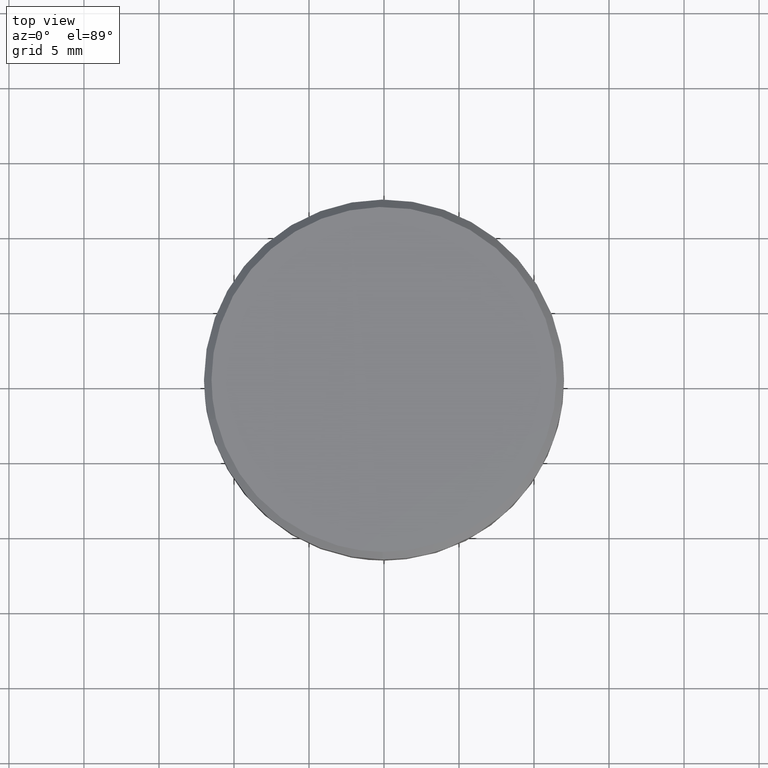
[diagram: clean part render]
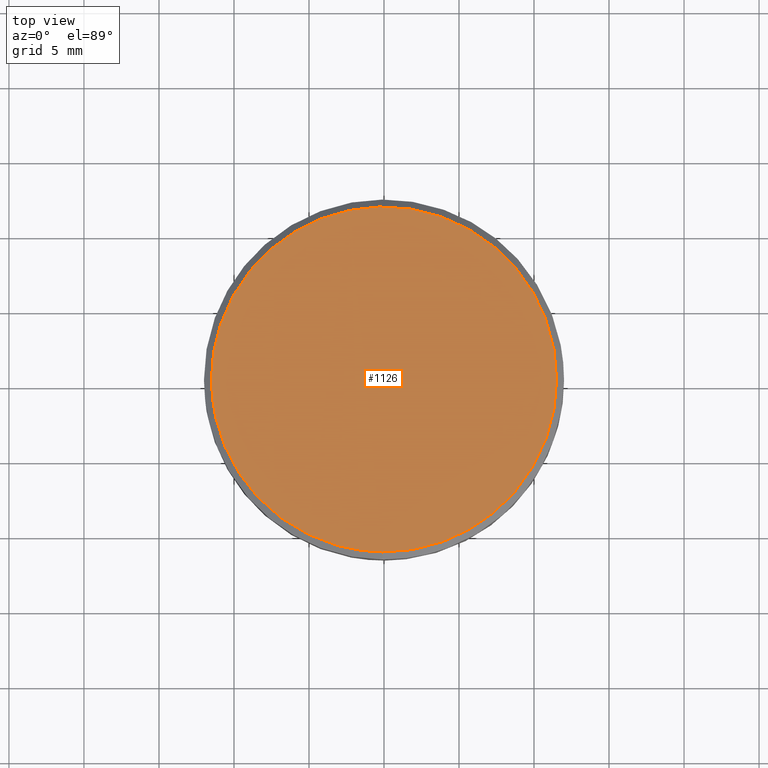
[diagram: same view with one face highlighted and labeled with its STEP entity id]
A machine part, top view. The second image highlights one B-rep face of the part: STEP entity #1126.
In plain terms, the highlighted face is a freeform B-spline surface patch.
Its self-contained STEP definition (entity closure, byte-faithful):
#87=CARTESIAN_POINT('',(-11.203508761551880,-2.594492518754810,14.999999999998041));
#88=VERTEX_POINT('',#87);
#94=CARTESIAN_POINT('',(-11.500000000000000,0.0,15.0));
#95=VERTEX_POINT('',#94);
#96=CARTESIAN_POINT('',(-11.500000000000000,0.0,15.0));
#97=CARTESIAN_POINT('',(-11.500000000000002,-1.314187347834063,15.0));
#98=CARTESIAN_POINT('',(-11.203508761551882,-2.594492518754810,14.999999999998044));
#106=(BOUNDED_CURVE()B_SPLINE_CURVE(2,(#96,#97,#98),.UNSPECIFIED.,.F.,.U.)B_SPLINE_CURVE_WITH_KNOTS((3,3),(0.500000000000000,0.538577028215869),.UNSPECIFIED.)CURVE()GEOMETRIC_REPRESENTATION_ITEM()RATIONAL_B_SPLINE_CURVE((1.0,0.954804200134387,0.923556557442010))REPRESENTATION_ITEM(''));
#107=EDGE_CURVE('',#95,#88,#106,.T.);
#109=CARTESIAN_POINT('',(11.500000000000000,0.0,15.0));
#110=VERTEX_POINT('',#109);
#111=CARTESIAN_POINT('',(11.500000000000000,0.0,15.0));
#112=CARTESIAN_POINT('',(11.500000000000000,11.500000000000000,14.999999999999995));
#113=CARTESIAN_POINT('',(0.0,11.500000000000000,15.0));
#114=CARTESIAN_POINT('',(-11.500000000000000,11.500000000000000,14.999999999999995));
#115=CARTESIAN_POINT('',(-11.500000000000000,0.0,15.0));
#123=(BOUNDED_CURVE()B_SPLINE_CURVE(2,(#111,#112,#113,#114,#115),.UNSPECIFIED.,.F.,.U.)B_SPLINE_CURVE_WITH_KNOTS((3,2,3),(0.0,0.250000000000000,0.500000000000000),.UNSPECIFIED.)CURVE()GEOMETRIC_REPRESENTATION_ITEM()RATIONAL_B_SPLINE_CURVE((1.0,0.707106781186548,1.0,0.707106781186548,1.0))REPRESENTATION_ITEM(''));
#124=EDGE_CURVE('',#110,#95,#123,.T.);
#126=CARTESIAN_POINT('',(-0.100355158267969,-11.499562115242620,14.999999999995000));
#127=VERTEX_POINT('',#126);
#128=CARTESIAN_POINT('',(-0.100355158267969,-11.499562115242618,14.999999999995005));
#129=CARTESIAN_POINT('',(-0.050178534474695,-11.499999999999998,15.000000000000007));
#130=CARTESIAN_POINT('',(0.0,-11.500000000000000,15.0));
#131=CARTESIAN_POINT('',(11.500000000000000,-11.500000000000000,14.999999999999995));
#132=CARTESIAN_POINT('',(11.500000000000000,0.0,15.0));
#140=(BOUNDED_CURVE()B_SPLINE_CURVE(2,(#128,#129,#130,#131,#132),.UNSPECIFIED.,.F.,.U.)B_SPLINE_CURVE_WITH_KNOTS((3,2,3),(0.748460105663891,0.750000000000000,1.0),.UNSPECIFIED.)CURVE()GEOMETRIC_REPRESENTATION_ITEM()RATIONAL_B_SPLINE_CURVE((0.996414028097809,0.998195901565058,1.0,0.707106781186548,1.0))REPRESENTATION_ITEM(''));
#141=EDGE_CURVE('',#127,#110,#140,.T.);
#243=CARTESIAN_POINT('',(-11.203508761551882,-2.594492518754810,14.999999999998039));
#244=CARTESIAN_POINT('',(-9.159593812553178,-11.420503337159055,14.999999999999996));
#245=CARTESIAN_POINT('',(-0.100355158267969,-11.499562115242622,14.999999999994998));
#253=(BOUNDED_CURVE()B_SPLINE_CURVE(2,(#243,#244,#245),.UNSPECIFIED.,.F.,.U.)B_SPLINE_CURVE_WITH_KNOTS((3,3),(0.538577028215870,0.748460105663891),.UNSPECIFIED.)CURVE()GEOMETRIC_REPRESENTATION_ITEM()RATIONAL_B_SPLINE_CURVE((0.923556557442009,0.753549905437272,0.996414028097809))REPRESENTATION_ITEM(''));
#254=EDGE_CURVE('',#88,#127,#253,.T.);
#1115=CARTESIAN_POINT('',(-12.648849955421539,-12.648390504168120,15.0));
#1116=CARTESIAN_POINT('',(12.648850572329611,-12.648390504168120,15.0));
#1117=CARTESIAN_POINT('',(-12.648849955421539,12.648828714536270,15.0));
#1118=CARTESIAN_POINT('',(12.648850572329611,12.648828714536270,15.0));
#1119=B_SPLINE_SURFACE_WITH_KNOTS('',1,1,((#1115,#1117),(#1116,#1118)),.UNSPECIFIED.,.F.,.F.,.U.,(2,2),(2,2),(0.0,25.297700527751150),(0.0,25.297219218704392),.UNSPECIFIED.);
#1120=ORIENTED_EDGE('',*,*,#124,.T.);
#1121=ORIENTED_EDGE('',*,*,#107,.T.);
#1122=ORIENTED_EDGE('',*,*,#254,.T.);
#1123=ORIENTED_EDGE('',*,*,#141,.T.);
#1124=EDGE_LOOP('',(#1120,#1121,#1122,#1123));
#1125=FACE_OUTER_BOUND('',#1124,.T.);
#1126=ADVANCED_FACE('',(#1125),#1119,.T.);